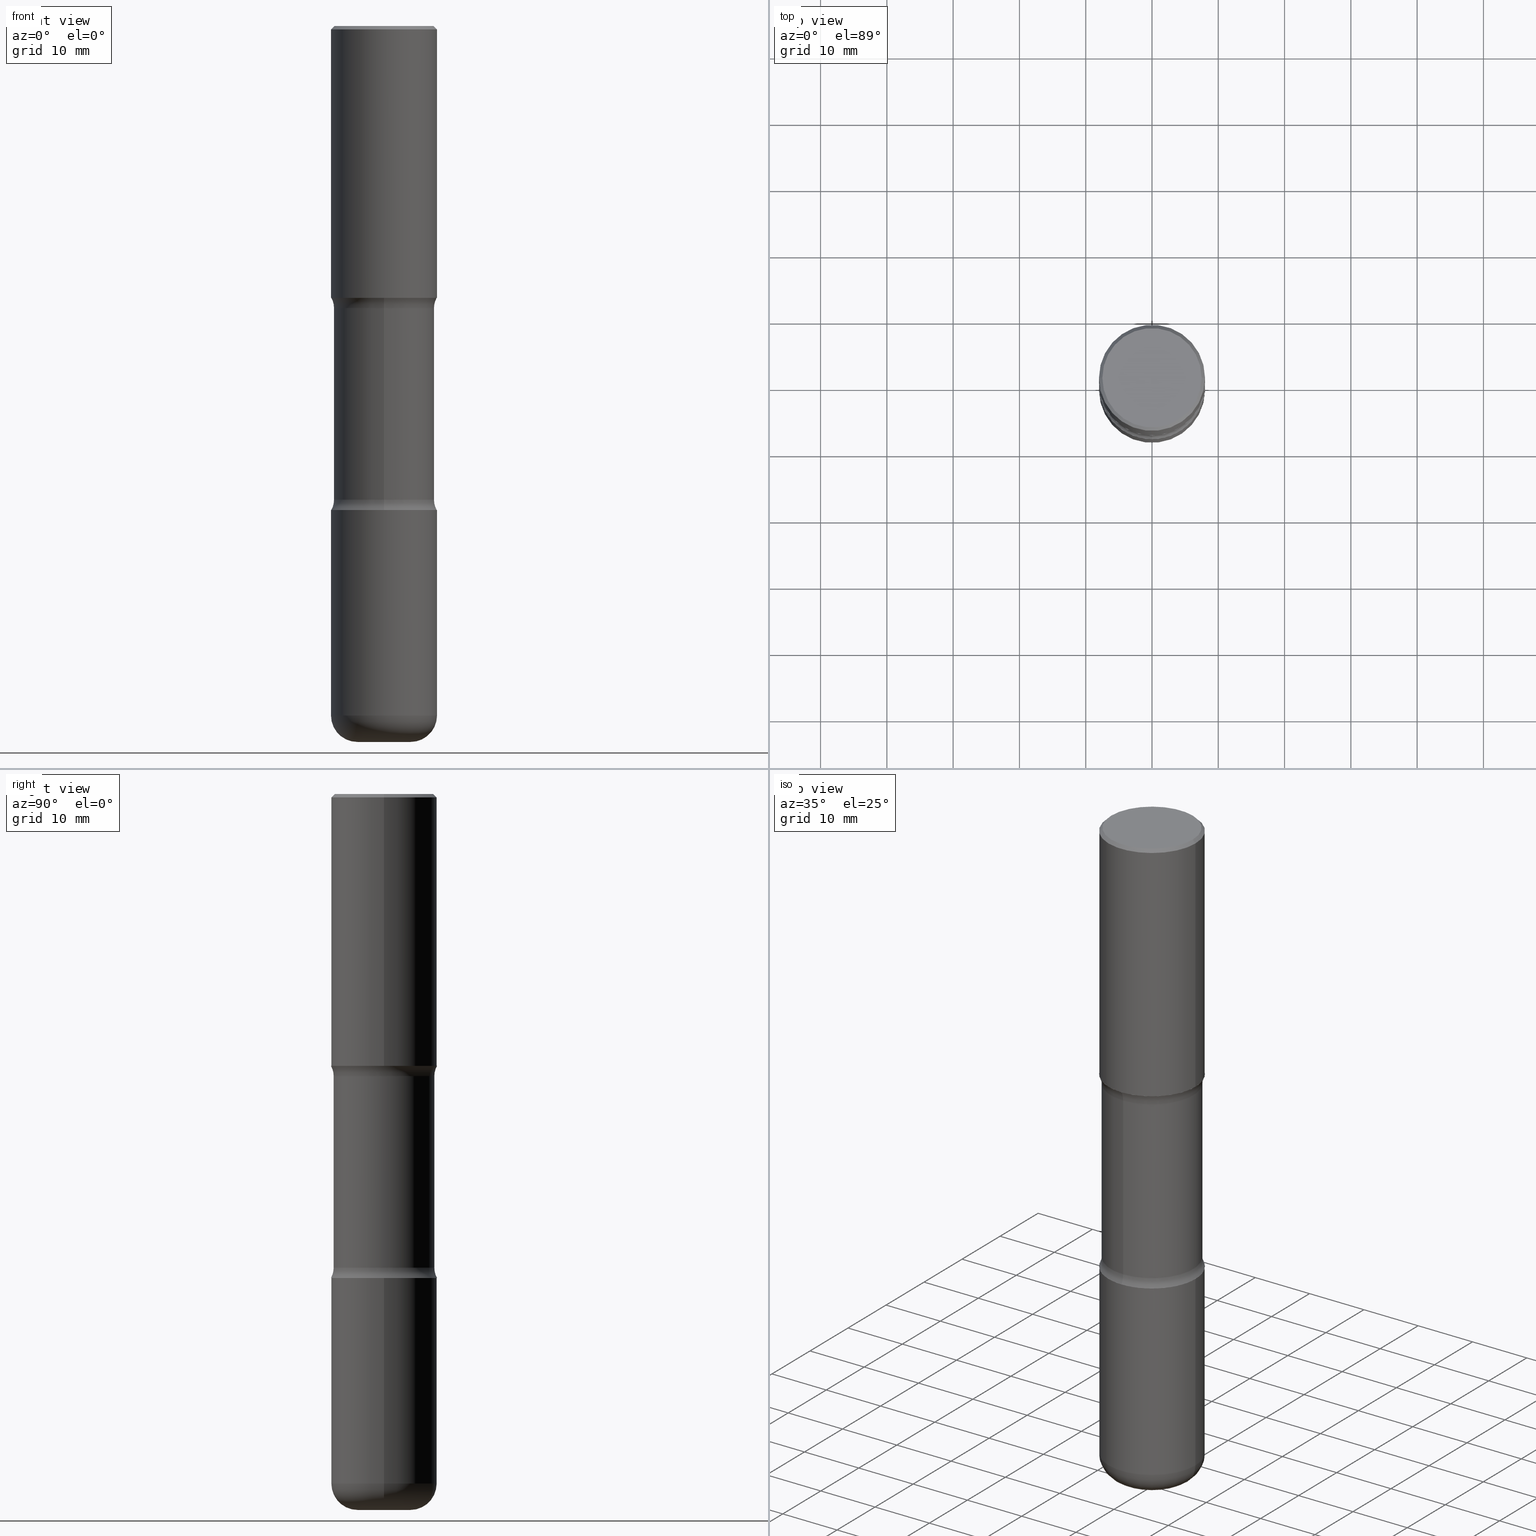
[diagram: canonical four-view strip — front | top / right | iso, engineering-drawing reading convention]
A machine part, canonical four-view strip (front | top / right | iso — engineering-drawing reading convention). The complete STEP part file that produces these views, byte-faithful:
ISO-10303-21;
HEADER;
FILE_DESCRIPTION (( 'STEP AP203' ),
    '1' );
FILE_NAME ('44987.STEP',
    '2024-03-02T04:22:51',
    ( '' ),
    ( '' ),
    'SwSTEP 2.0',
    'SolidWorks 2023',
    '' );
FILE_SCHEMA (( 'CONFIG_CONTROL_DESIGN' ));
ENDSEC;

DATA;
#1 = DIRECTION ( 'NONE',  ( -6.982962677686265922E-15, -1.000000000000000000, 3.441919510220789364E-15 ) ) ;
#2 = VERTEX_POINT ( 'NONE', #511 ) ;
#3 = EDGE_CURVE ( 'NONE', #374, #387, #512, .T. ) ;
#4 = CC_DESIGN_PERSON_AND_ORGANIZATION_ASSIGNMENT ( #79, #382, ( #286 ) ) ;
#5 = CIRCLE ( 'NONE', #237, 0.1579500000000003956 ) ;
#6 = ORIENTED_EDGE ( 'NONE', *, *, #210, .T. ) ;
#7 = CARTESIAN_POINT ( 'NONE',  ( -0.3149500000000000077, 2.129454468560426573E-15, -0.02000000000000006981 ) ) ;
#8 = ORIENTED_EDGE ( 'NONE', *, *, #85, .T. ) ;
#9 = DIRECTION ( 'NONE',  ( -1.000000000000000000, 6.982962677686265922E-15, -4.883557194083112340E-29 ) ) ;
#10 = DESIGN_CONTEXT ( 'detailed design', #113, 'design' ) ;
#11 = PERSON ( 'UNSPECIFIED', 'UNSPECIFIED', 'UNSPECIFIED', ('UNSPECIFIED'), ('UNSPECIFIED'), ('UNSPECIFIED') ) ;
#12 = MECHANICAL_CONTEXT ( 'NONE', #456, 'mechanical' ) ;
#13 = CIRCLE ( 'NONE', #350, 0.2990000000000000435 ) ;
#14 = CARTESIAN_POINT ( 'NONE',  ( -0.3149500000000001743, -6.150350556922980531E-16, -1.614200000000000745 ) ) ;
#15 = AXIS2_PLACEMENT_3D ( 'NONE', #82, #517, #320 ) ;
#16 = ORIENTED_EDGE ( 'NONE', *, *, #435, .T. ) ;
#17 = ORIENTED_EDGE ( 'NONE', *, *, #185, .F. ) ;
#18 = CC_DESIGN_PERSON_AND_ORGANIZATION_ASSIGNMENT ( #155, #283, ( #429 ) ) ;
#19 = EDGE_LOOP ( 'NONE', ( #395, #101, #223, #477 ) ) ;
#20 = VERTEX_POINT ( 'NONE', #487 ) ;
#21 = EDGE_CURVE ( 'NONE', #20, #174, #182, .T. ) ;
#22 = DIRECTION ( 'NONE',  ( 2.438088387897960049E-29, -3.491481338843145188E-15, -1.000000000000000000 ) ) ;
#23 = AXIS2_PLACEMENT_3D ( 'NONE', #131, #434, #226 ) ;
#24 = AXIS2_PLACEMENT_3D ( 'NONE', #92, #141, #363 ) ;
#25 = AXIS2_PLACEMENT_3D ( 'NONE', #480, #398, #313 ) ;
#26 = EDGE_LOOP ( 'NONE', ( #49, #472, #439, #63 ) ) ;
#27 = FACE_OUTER_BOUND ( 'NONE', #357, .T. ) ;
#28 = DIRECTION ( 'NONE',  ( 6.982962677686266711E-15, 1.000000000000000000, -3.654646145370251312E-15 ) ) ;
#29 = ORIENTED_EDGE ( 'NONE', *, *, #551, .F. ) ;
#30 = CALENDAR_DATE ( 2024, 1, 3 ) ;
#31 = ORIENTED_EDGE ( 'NONE', *, *, #404, .F. ) ;
#32 = CARTESIAN_POINT ( 'NONE',  ( 4.890937612370289799E-31, -6.982962677686315028E-17, -0.02000000000000006981 ) ) ;
#33 = AXIS2_PLACEMENT_3D ( 'NONE', #186, #181, #48 ) ;
#34 = LOCAL_TIME ( 23, 22, 51.00000000000000000, #362 ) ;
#35 = DIRECTION ( 'NONE',  ( 2.480077646135916176E-29, -3.441919510220789364E-15, -1.000000000000000000 ) ) ;
#36 = ORIENTED_EDGE ( 'NONE', *, *, #185, .T. ) ;
#37 = DATE_AND_TIME ( #423, #58 ) ;
#38 = AXIS2_PLACEMENT_3D ( 'NONE', #356, #222, #314 ) ;
#39 = CC_DESIGN_APPROVAL ( #478, ( #286 ) ) ;
#40 = ORIENTED_EDGE ( 'NONE', *, *, #460, .T. ) ;
#41 = DIRECTION ( 'NONE',  ( 6.982962677686266711E-15, 1.000000000000000000, -3.654646145370252101E-15 ) ) ;
#42 = SHAPE_DEFINITION_REPRESENTATION ( #66, #252 ) ;
#43 = CYLINDRICAL_SURFACE ( 'NONE', #24, 0.2989999999999999880 ) ;
#44 = EDGE_CURVE ( 'NONE', #231, #180, #550, .T. ) ;
#45 = ORIENTED_EDGE ( 'NONE', *, *, #347, .T. ) ;
#46 = EDGE_CURVE ( 'NONE', #374, #541, #409, .T. ) ;
#47 = CARTESIAN_POINT ( 'NONE',  ( 0.000000000000000000, 0.000000000000000000, 0.000000000000000000 ) ) ;
#48 = DIRECTION ( 'NONE',  ( 1.000000000000000000, -6.982962677686268288E-15, 4.883557194083114022E-29 ) ) ;
#49 = ORIENTED_EDGE ( 'NONE', *, *, #355, .F. ) ;
#50 = CIRCLE ( 'NONE', #188, 0.3149500000000002298 ) ;
#51 = DIMENSIONAL_EXPONENTS ( 1.000000000000000000, 0.000000000000000000, 0.000000000000000000, 0.000000000000000000, 0.000000000000000000, 0.000000000000000000, 0.000000000000000000 ) ;
#52 = EDGE_LOOP ( 'NONE', ( #157, #29 ) ) ;
#53 = EDGE_LOOP ( 'NONE', ( #327, #532, #536, #248 ) ) ;
#54 = DIRECTION ( 'NONE',  ( 1.000000000000000000, -6.982962677686268288E-15, 0.000000000000000000 ) ) ;
#55 = EDGE_CURVE ( 'NONE', #318, #377, #481, .T. ) ;
#56 = ORIENTED_EDGE ( 'NONE', *, *, #228, .T. ) ;
#57 = DIRECTION ( 'NONE',  ( -2.445468806185136877E-29, 3.491481338843145188E-15, 1.000000000000000000 ) ) ;
#58 = LOCAL_TIME ( 23, 22, 51.00000000000000000, #265 ) ;
#59 = ORIENTED_EDGE ( 'NONE', *, *, #203, .F. ) ;
#60 = ADVANCED_FACE ( 'NONE', ( #272 ), #151, .F. ) ;
#61 = CALENDAR_DATE ( 2024, 1, 3 ) ;
#62 = DIRECTION ( 'NONE',  ( 2.480077646135916176E-29, -3.441919510220789364E-15, -1.000000000000000000 ) ) ;
#63 = ORIENTED_EDGE ( 'NONE', *, *, #122, .T. ) ;
#64 = ADVANCED_FACE ( 'NONE', ( #160 ), #170, .F. ) ;
#65 = DIRECTION ( 'NONE',  ( 1.000000000000000000, -6.982962677686267499E-15, 4.876053491004735468E-29 ) ) ;
#66 = PRODUCT_DEFINITION_SHAPE ( 'NONE', 'NONE',  #429 ) ;
#67 = EDGE_LOOP ( 'NONE', ( #74, #431, #40, #6 ) ) ;
#68 = CARTESIAN_POINT ( 'NONE',  ( 2.087905840628298129E-15, 0.2989999999999852220, -4.252000000000001556 ) ) ;
#69 = DIRECTION ( 'NONE',  ( 1.000000000000000000, -6.982962677686265922E-15, 4.876176775795935793E-29 ) ) ;
#70 = CLOSED_SHELL ( 'NONE', ( #443, #106, #317, #60, #164, #507, #235, #338 ) ) ;
#71 = TOROIDAL_SURFACE ( 'NONE', #229, 0.4240000000000000990, 0.1249999999999999445 ) ;
#72 = DIRECTION ( 'NONE',  ( 6.982962677686265922E-15, 1.000000000000000000, -3.441919510220789364E-15 ) ) ;
#73 = FACE_OUTER_BOUND ( 'NONE', #397, .T. ) ;
#74 = ORIENTED_EDGE ( 'NONE', *, *, #264, .F. ) ;
#75 = CARTESIAN_POINT ( 'NONE',  ( 2.087905840628262630E-15, 0.2989999999999902180, -2.812900920628869095 ) ) ;
#76 = CLOSED_SHELL ( 'NONE', ( #380, #167, #509, #336, #292, #177 ) ) ;
#77 = TOROIDAL_SURFACE ( 'NONE', #217, 0.4239999999999999880, 0.1250000000000000555 ) ;
#78 = DIRECTION ( 'NONE',  ( -2.445468806185136877E-29, 3.491481338843145188E-15, 1.000000000000000000 ) ) ;
#79 = PERSON_AND_ORGANIZATION ( #11, #84 ) ;
#80 = CYLINDRICAL_SURFACE ( 'NONE', #124, 0.3149500000000002853 ) ;
#81 = PERSON_AND_ORGANIZATION ( #11, #84 ) ;
#82 = CARTESIAN_POINT ( 'NONE',  ( 4.890937612370289799E-31, -6.982962677686315028E-17, -0.02000000000000006981 ) ) ;
#83 = CIRCLE ( 'NONE', #483, 0.3149500000000003408 ) ;
#84 = ORGANIZATION ( 'UNSPECIFIED', 'UNSPECIFIED', '' ) ;
#85 = EDGE_CURVE ( 'NONE', #318, #387, #148, .T. ) ;
#86 = ORIENTED_EDGE ( 'NONE', *, *, #311, .T. ) ;
#87 = DIRECTION ( 'NONE',  ( -1.000000000000000000, 6.982962677686265922E-15, -4.876176775795935793E-29 ) ) ;
#88 = MANIFOLD_SOLID_BREP ( 'Body-Move/Copy2[1]', #76 ) ;
#89 = EDGE_LOOP ( 'NONE', ( #546, #401, #450, #221 ) ) ;
#90 = APPROVAL ( #115, 'UNSPECIFIED' ) ;
#91 = CYLINDRICAL_SURFACE ( 'NONE', #470, 0.2989999999999999880 ) ;
#92 = CARTESIAN_POINT ( 'NONE',  ( 1.044582434535137653E-28, -1.477748245291944959E-14, -4.252000000000000668 ) ) ;
#93 = ORIENTED_EDGE ( 'NONE', *, *, #347, .F. ) ;
#94 = DIRECTION ( 'NONE',  ( 2.480077646135916176E-29, -3.441919510220789364E-15, -1.000000000000000000 ) ) ;
#95 = CALENDAR_DATE ( 2024, 1, 3 ) ;
#96 = FACE_OUTER_BOUND ( 'NONE', #321, .T. ) ;
#97 = VECTOR ( 'NONE', #57, 39.37007874015748143 ) ;
#98 = CARTESIAN_POINT ( 'NONE',  ( 3.947475746944049633E-29, -5.635949177160607736E-15, -1.614200000000000745 ) ) ;
#99 = DIRECTION ( 'NONE',  ( 1.000000000000000000, -6.860497997771530774E-15, 4.841405836971965838E-29 ) ) ;
#100 = DIRECTION ( 'NONE',  ( -2.445468806185136597E-29, 3.491481338843145583E-15, 1.000000000000000000 ) ) ;
#101 = ORIENTED_EDGE ( 'NONE', *, *, #533, .T. ) ;
#102 =( NAMED_UNIT ( * ) SI_UNIT ( $, .STERADIAN. ) SOLID_ANGLE_UNIT ( ) );
#103 = ORIENTED_EDGE ( 'NONE', *, *, #311, .F. ) ;
#104 = DIRECTION ( 'NONE',  ( -2.445468806185136597E-29, 3.491481338843145583E-15, 1.000000000000000000 ) ) ;
#105 = CLOSED_SHELL ( 'NONE', ( #489, #465, #246, #420, #64, #305 ) ) ;
#106 = ADVANCED_FACE ( 'NONE', ( #240 ), #209, .F. ) ;
#107 = AXIS2_PLACEMENT_3D ( 'NONE', #354, #99, #389 ) ;
#108 = PLANE ( 'NONE',  #251 ) ;
#109 = ORIENTED_EDGE ( 'NONE', *, *, #3, .F. ) ;
#110 = LINE ( 'NONE', #335, #97 ) ;
#111 = DIRECTION ( 'NONE',  ( 1.000000000000000000, -6.982962677686268288E-15, 4.883557194083114022E-29 ) ) ;
#112 = ORIENTED_EDGE ( 'NONE', *, *, #371, .T. ) ;
#113 = APPLICATION_CONTEXT ( 'configuration controlled 3d designs of mechanical parts and assemblies' ) ;
#114 = COORDINATED_UNIVERSAL_TIME_OFFSET ( 5, 0, .BEHIND. ) ;
#115 = APPROVAL_STATUS ( 'not_yet_approved' ) ;
#116 = FACE_OUTER_BOUND ( 'NONE', #133, .T. ) ;
#117 = VECTOR ( 'NONE', #508, 39.37007874015748143 ) ;
#118 = ORIENTED_EDGE ( 'NONE', *, *, #192, .T. ) ;
#119 = LINE ( 'NONE', #168, #117 ) ;
#120 = DIRECTION ( 'NONE',  ( 1.000000000000000000, -6.982962677686269866E-15, 0.000000000000000000 ) ) ;
#121 = DIRECTION ( 'NONE',  ( 6.982962677686264344E-15, 1.000000000000000000, -3.469564049740290403E-15 ) ) ;
#122 = EDGE_CURVE ( 'NONE', #236, #2, #542, .T. ) ;
#123 = CC_DESIGN_DATE_AND_TIME_ASSIGNMENT ( #213, #351, ( #286 ) ) ;
#124 = AXIS2_PLACEMENT_3D ( 'NONE', #414, #557, #348 ) ;
#125 = FACE_OUTER_BOUND ( 'NONE', #342, .T. ) ;
#126 = ORIENTED_EDGE ( 'NONE', *, *, #268, .T. ) ;
#127 = EDGE_CURVE ( 'NONE', #377, #236, #402, .T. ) ;
#128 = AXIS2_PLACEMENT_3D ( 'NONE', #359, #518, #28 ) ;
#129 = PERSON_AND_ORGANIZATION_ROLE ( 'design_supplier' ) ;
#130 = ORIENTED_EDGE ( 'NONE', *, *, #203, .T. ) ;
#131 = CARTESIAN_POINT ( 'NONE',  ( 7.028277348976083234E-29, -1.003451736783520325E-14, -2.874000000000000554 ) ) ;
#132 = FACE_OUTER_BOUND ( 'NONE', #330, .T. ) ;
#133 = EDGE_LOOP ( 'NONE', ( #109, #103, #16, #45 ) ) ;
#134 = DIRECTION ( 'NONE',  ( 1.000000000000000000, -6.982962677686269866E-15, 0.000000000000000000 ) ) ;
#135 = ORIENTED_EDGE ( 'NONE', *, *, #476, .F. ) ;
#136 = ORIENTED_EDGE ( 'NONE', *, *, #44, .T. ) ;
#137 = VECTOR ( 'NONE', #165, 39.37007874015748143 ) ;
#138 = DIRECTION ( 'NONE',  ( 1.000000000000000000, 0.000000000000000000, 0.000000000000000000 ) ) ;
#139 = CONICAL_SURFACE ( 'NONE', #15, 0.3149500000000000077, 0.7853981633974477239 ) ;
#140 = DIRECTION ( 'NONE',  ( 2.480077646135915895E-29, -3.441919510220789364E-15, -1.000000000000000000 ) ) ;
#141 = DIRECTION ( 'NONE',  ( 2.480077646135916176E-29, -3.441919510220789364E-15, -1.000000000000000000 ) ) ;
#142 = ORIENTED_EDGE ( 'NONE', *, *, #46, .F. ) ;
#143 = CARTESIAN_POINT ( 'NONE',  ( 4.890937612370289799E-31, -6.982962677686315028E-17, -0.02000000000000006981 ) ) ;
#144 = DIRECTION ( 'NONE',  ( 2.438088387897960049E-29, -3.491481338843145188E-15, -1.000000000000000000 ) ) ;
#145 = ORIENTED_EDGE ( 'NONE', *, *, #210, .F. ) ;
#146 = EDGE_CURVE ( 'NONE', #20, #538, #537, .T. ) ;
#147 = PERSON_AND_ORGANIZATION ( #11, #84 ) ;
#148 = LINE ( 'NONE', #156, #392 ) ;
#149 = VERTEX_POINT ( 'NONE', #14 ) ;
#150 = VERTEX_POINT ( 'NONE', #407 ) ;
#151 = TOROIDAL_SURFACE ( 'NONE', #227, 0.4239999999999999880, 0.1250000000000000555 ) ;
#152 = AXIS2_PLACEMENT_3D ( 'NONE', #290, #144, #441 ) ;
#153 = CARTESIAN_POINT ( 'NONE',  ( 1.001419476132813495E-28, -1.429761608256268379E-14, -4.095000000000000639 ) ) ;
#154 = AXIS2_PLACEMENT_3D ( 'NONE', #280, #544, #138 ) ;
#155 = PERSON_AND_ORGANIZATION ( #11, #84 ) ;
#156 = CARTESIAN_POINT ( 'NONE',  ( -2.051288901333583214E-15, -0.2990000000000148095, -4.251999999999999780 ) ) ;
#157 = ORIENTED_EDGE ( 'NONE', *, *, #192, .F. ) ;
#158 = UNCERTAINTY_MEASURE_WITH_UNIT (LENGTH_MEASURE( 1.000000000000000082E-05 ), #239, 'distance_accuracy_value', 'NONE');
#159 = CARTESIAN_POINT ( 'NONE',  ( -3.131554243005659264E-46, 4.471029511141341874E-32, 1.280553747030123384E-17 ) ) ;
#160 = FACE_OUTER_BOUND ( 'NONE', #52, .T. ) ;
#161 = CONICAL_SURFACE ( 'NONE', #267, 0.3149500000000000077, 0.7853981633974477239 ) ;
#162 = DATE_AND_TIME ( #30, #543 ) ;
#163 = AXIS2_PLACEMENT_3D ( 'NONE', #496, #249, #65 ) ;
#164 = ADVANCED_FACE ( 'NONE', ( #373 ), #108, .F. ) ;
#165 = DIRECTION ( 'NONE',  ( -2.445468806185136877E-29, 3.491481338843145188E-15, 1.000000000000000000 ) ) ;
#166 = CARTESIAN_POINT ( 'NONE',  ( -2.160713844398073943E-15, -0.3149500000000101663, -2.873999999999999666 ) ) ;
#167 = ADVANCED_FACE ( 'NONE', ( #187 ), #426, .T. ) ;
#168 = CARTESIAN_POINT ( 'NONE',  ( 0.3149500000000000077, -2.230543471175007450E-15, -0.02000000000000006981 ) ) ;
#169 = DIRECTION ( 'NONE',  ( -2.445468806185136597E-29, 3.491481338843145583E-15, 1.000000000000000000 ) ) ;
#170 = PLANE ( 'NONE',  #410 ) ;
#171 = CARTESIAN_POINT ( 'NONE',  ( 4.055405991321890096E-29, -5.908685282203086004E-15, -1.675299079371134425 ) ) ;
#172 = CARTESIAN_POINT ( 'NONE',  ( 2.059624841783564063E-15, 0.2949499999999999345, -1.023409652156634942E-15 ) ) ;
#173 = CALENDAR_DATE ( 2024, 1, 3 ) ;
#174 = VERTEX_POINT ( 'NONE', #408 ) ;
#175 = CIRCLE ( 'NONE', #339, 0.1569999999999997231 ) ;
#176 = APPROVAL_PERSON_ORGANIZATION ( #337, #90, #295 ) ;
#177 = ADVANCED_FACE ( 'NONE', ( #325 ), #539, .F. ) ;
#178 = ORIENTED_EDGE ( 'NONE', *, *, #122, .F. ) ;
#179 = FACE_OUTER_BOUND ( 'NONE', #399, .T. ) ;
#180 = VERTEX_POINT ( 'NONE', #370 ) ;
#181 = DIRECTION ( 'NONE',  ( -2.445468806185136597E-29, 3.491481338843145583E-15, 1.000000000000000000 ) ) ;
#182 = CIRCLE ( 'NONE', #494, 0.3149500000000003408 ) ;
#183 = AXIS2_PLACEMENT_3D ( 'NONE', #172, #349, #87 ) ;
#184 = DIRECTION ( 'NONE',  ( 2.480077646135916176E-29, -3.441919510220789364E-15, -1.000000000000000000 ) ) ;
#185 = EDGE_CURVE ( 'NONE', #390, #538, #50, .T. ) ;
#186 = CARTESIAN_POINT ( 'NONE',  ( 1.001419476132813495E-28, -1.429761608256268379E-14, -4.095000000000000639 ) ) ;
#187 = FACE_OUTER_BOUND ( 'NONE', #288, .T. ) ;
#188 = AXIS2_PLACEMENT_3D ( 'NONE', #202, #486, #190 ) ;
#189 = APPLICATION_PROTOCOL_DEFINITION ( 'international standard', 'config_control_design', 1994, #113 ) ;
#190 = DIRECTION ( 'NONE',  ( 1.000000000000000000, -6.982962677686264344E-15, 0.000000000000000000 ) ) ;
#191 = DATE_AND_TIME ( #95, #34 ) ;
#192 = EDGE_CURVE ( 'NONE', #150, #149, #462, .T. ) ;
#193 = CC_DESIGN_PERSON_AND_ORGANIZATION_ASSIGNMENT ( #147, #276, ( #448 ) ) ;
#194 =( NAMED_UNIT ( * ) PLANE_ANGLE_UNIT ( ) SI_UNIT ( $, .RADIAN. ) );
#195 = CARTESIAN_POINT ( 'NONE',  ( 6.878861456287348184E-29, -9.821191072390396407E-15, -2.812900920628867762 ) ) ;
#196 = EDGE_LOOP ( 'NONE', ( #31, #136, #284, #521 ) ) ;
#197 = DIRECTION ( 'NONE',  ( 6.982962677686264344E-15, 1.000000000000000000, -3.469564049740290403E-15 ) ) ;
#198 = DATE_TIME_ROLE ( 'creation_date' ) ;
#199 = ORIENTED_EDGE ( 'NONE', *, *, #21, .F. ) ;
#200 =( LENGTH_UNIT ( ) NAMED_UNIT ( * ) SI_UNIT ( $, .METRE. ) );
#201 = AXIS2_PLACEMENT_3D ( 'NONE', #153, #497, #111 ) ;
#202 = CARTESIAN_POINT ( 'NONE',  ( 7.028277348976083234E-29, -1.003451736783520325E-14, -2.874000000000000554 ) ) ;
#203 = EDGE_CURVE ( 'NONE', #180, #231, #5, .T. ) ;
#204 = DIRECTION ( 'NONE',  ( 2.480077646135916176E-29, -3.441919510220789364E-15, -1.000000000000000000 ) ) ;
#205 = CARTESIAN_POINT ( 'NONE',  ( 0.3149500000000000632, -2.199284095337290265E-15, 1.535751875536930410E-29 ) ) ;
#206 = ORIENTED_EDGE ( 'NONE', *, *, #533, .F. ) ;
#207 = CARTESIAN_POINT ( 'NONE',  ( 0.000000000000000000, 0.000000000000000000, 0.000000000000000000 ) ) ;
#208 = CARTESIAN_POINT ( 'NONE',  ( 0.000000000000000000, 0.000000000000000000, 0.000000000000000000 ) ) ;
#209 = TOROIDAL_SURFACE ( 'NONE', #529, 0.4240000000000000990, 0.1249999999999999445 ) ;
#210 = EDGE_CURVE ( 'NONE', #498, #405, #469, .T. ) ;
#211 = CARTESIAN_POINT ( 'NONE',  ( 7.028277348976083234E-29, -1.003451736783520325E-14, -2.874000000000000554 ) ) ;
#212 = DIRECTION ( 'NONE',  ( -1.000000000000000000, 7.105427357601001859E-15, 0.000000000000000000 ) ) ;
#213 = DATE_AND_TIME ( #173, #316 ) ;
#214 = PLANE ( 'NONE',  #183 ) ;
#215 = PERSON_AND_ORGANIZATION ( #11, #84 ) ;
#216 = EDGE_CURVE ( 'NONE', #538, #390, #504, .T. ) ;
#217 = AXIS2_PLACEMENT_3D ( 'NONE', #473, #425, #525 ) ;
#218 = EDGE_LOOP ( 'NONE', ( #142, #468, #112, #412 ) ) ;
#219 = AXIS2_PLACEMENT_3D ( 'NONE', #207, #463, #554 ) ;
#220 = AXIS2_PLACEMENT_3D ( 'NONE', #47, #224, #466 ) ;
#221 = ORIENTED_EDGE ( 'NONE', *, *, #460, .F. ) ;
#222 = DIRECTION ( 'NONE',  ( -1.000000000000000000, 6.982962677686265922E-15, -4.883557194083112340E-29 ) ) ;
#223 = ORIENTED_EDGE ( 'NONE', *, *, #216, .F. ) ;
#224 = DIRECTION ( 'NONE',  ( -2.445468806185136597E-29, 3.491481338843145583E-15, 1.000000000000000000 ) ) ;
#225 = ORIENTED_EDGE ( 'NONE', *, *, #46, .T. ) ;
#226 = DIRECTION ( 'NONE',  ( 6.982962677686264344E-15, 1.000000000000000000, -3.469564049740290403E-15 ) ) ;
#227 = AXIS2_PLACEMENT_3D ( 'NONE', #232, #396, #501 ) ;
#228 = EDGE_CURVE ( 'NONE', #319, #241, #334, .T. ) ;
#229 = AXIS2_PLACEMENT_3D ( 'NONE', #455, #204, #72 ) ;
#230 = PRODUCT_DEFINITION_FORMATION_WITH_SPECIFIED_SOURCE ( 'ANY', '', #448, .NOT_KNOWN. ) ;
#231 = VERTEX_POINT ( 'NONE', #556 ) ;
#232 = CARTESIAN_POINT ( 'NONE',  ( 4.049200658180612693E-29, -5.917571672447023777E-15, -1.675299079371134425 ) ) ;
#233 = FACE_OUTER_BOUND ( 'NONE', #89, .T. ) ;
#234 = DIRECTION ( 'NONE',  ( 1.000000000000000000, -6.982962677686266711E-15, 0.000000000000000000 ) ) ;
#235 = ADVANCED_FACE ( 'NONE', ( #116 ), #71, .F. ) ;
#236 = VERTEX_POINT ( 'NONE', #253 ) ;
#237 = AXIS2_PLACEMENT_3D ( 'NONE', #490, #281, #120 ) ;
#238 = APPROVAL_PERSON_ORGANIZATION ( #331, #328, #492 ) ;
#239 =( CONVERSION_BASED_UNIT ( 'INCH', #499 ) LENGTH_UNIT ( ) NAMED_UNIT ( #51 ) );
#240 = FACE_OUTER_BOUND ( 'NONE', #218, .T. ) ;
#241 = VERTEX_POINT ( 'NONE', #258 ) ;
#242 = DATE_AND_TIME ( #61, #411 ) ;
#243 = CARTESIAN_POINT ( 'NONE',  ( 0.3149500000000002853, -2.199284095337291843E-15, 1.535751875536931531E-29 ) ) ;
#244 = ORIENTED_EDGE ( 'NONE', *, *, #551, .T. ) ;
#245 = CARTESIAN_POINT ( 'NONE',  ( 3.947475746944049633E-29, -5.635949177160607736E-15, -1.614200000000000745 ) ) ;
#246 = ADVANCED_FACE ( 'NONE', ( #312 ), #161, .T. ) ;
#247 = CARTESIAN_POINT ( 'NONE',  ( 2.960776175339016781E-15, 0.4239999999999940483, -1.675299079371135758 ) ) ;
#248 = ORIENTED_EDGE ( 'NONE', *, *, #127, .F. ) ;
#249 = DIRECTION ( 'NONE',  ( -2.445468806185136597E-29, 3.491481338843145583E-15, 1.000000000000000000 ) ) ;
#250 = AXIS2_PLACEMENT_3D ( 'NONE', #394, #94, #479 ) ;
#251 = AXIS2_PLACEMENT_3D ( 'NONE', #528, #140, #287 ) ;
#252 = ADVANCED_BREP_SHAPE_REPRESENTATION ( '44987', ( #88, #461, #458, #154 ), #417 ) ;
#253 = CARTESIAN_POINT ( 'NONE',  ( 2.199284095337330103E-15, 0.3149499999999946231, -1.614200000000001634 ) ) ;
#254 = DIRECTION ( 'NONE',  ( -2.445468806185136597E-29, 3.491481338843145583E-15, 1.000000000000000000 ) ) ;
#255 = FACE_OUTER_BOUND ( 'NONE', #19, .T. ) ;
#256 = EDGE_CURVE ( 'NONE', #149, #498, #418, .T. ) ;
#257 = CC_DESIGN_PERSON_AND_ORGANIZATION_ASSIGNMENT ( #464, #129, ( #230 ) ) ;
#258 = CARTESIAN_POINT ( 'NONE',  ( 0.2949499999999999345, -2.127023677808860075E-15, 1.280553747031587399E-17 ) ) ;
#259 = CYLINDRICAL_SURFACE ( 'NONE', #527, 0.3149500000000002853 ) ;
#260 = VECTOR ( 'NONE', #332, 39.37007874015748143 ) ;
#261 = APPROVAL_DATE_TIME ( #162, #90 ) ;
#262 = CARTESIAN_POINT ( 'NONE',  ( -2.106001372865877291E-15, -0.2990000000000058722, -1.675299079371133315 ) ) ;
#263 = CARTESIAN_POINT ( 'NONE',  ( 0.3149500000000000077, -2.230543471175007450E-15, -0.02000000000000006981 ) ) ;
#264 = EDGE_CURVE ( 'NONE', #241, #405, #119, .T. ) ;
#265 = COORDINATED_UNIVERSAL_TIME_OFFSET ( 5, 0, .BEHIND. ) ;
#266 = CARTESIAN_POINT ( 'NONE',  ( 1.050981742056963112E-28, -5.048753828358404860E-15, -2.874000000000000998 ) ) ;
#267 = AXIS2_PLACEMENT_3D ( 'NONE', #32, #381, #340 ) ;
#268 = EDGE_CURVE ( 'NONE', #377, #318, #445, .T. ) ;
#269 = CARTESIAN_POINT ( 'NONE',  ( 1.044582434535137653E-28, -1.477748245291944959E-14, -4.252000000000000668 ) ) ;
#270 = EDGE_CURVE ( 'NONE', #150, #405, #378, .T. ) ;
#271 = ORIENTED_EDGE ( 'NONE', *, *, #216, .T. ) ;
#272 = FACE_OUTER_BOUND ( 'NONE', #26, .T. ) ;
#273 = TOROIDAL_SURFACE ( 'NONE', #33, 0.1579500000000003679, 0.1569999999999997231 ) ;
#274 = PLANE ( 'NONE',  #530 ) ;
#275 = DIRECTION ( 'NONE',  ( 6.860497997771529985E-15, 1.000000000000000000, 0.000000000000000000 ) ) ;
#276 = PERSON_AND_ORGANIZATION_ROLE ( 'design_owner' ) ;
#277 = DIRECTION ( 'NONE',  ( 2.480077646135916176E-29, -3.441919510220789364E-15, -1.000000000000000000 ) ) ;
#278 = DIRECTION ( 'NONE',  ( -2.445468806185136597E-29, 3.491481338843145583E-15, 1.000000000000000000 ) ) ;
#279 = VERTEX_POINT ( 'NONE', #75 ) ;
#280 = CARTESIAN_POINT ( 'NONE',  ( 0.000000000000000000, 0.000000000000000000, 0.000000000000000000 ) ) ;
#281 = DIRECTION ( 'NONE',  ( -2.445468806185136597E-29, 3.491481338843145583E-15, 1.000000000000000000 ) ) ;
#282 = CC_DESIGN_DATE_AND_TIME_ASSIGNMENT ( #191, #198, ( #429 ) ) ;
#283 = PERSON_AND_ORGANIZATION_ROLE ( 'creator' ) ;
#284 = ORIENTED_EDGE ( 'NONE', *, *, #476, .T. ) ;
#285 = AXIS2_PLACEMENT_3D ( 'NONE', #547, #379, #510 ) ;
#286 = SECURITY_CLASSIFICATION ( '', '', #385 ) ;
#287 = DIRECTION ( 'NONE',  ( 6.982962677686265922E-15, 1.000000000000000000, -3.441919510220789364E-15 ) ) ;
#288 = EDGE_LOOP ( 'NONE', ( #130, #393, #199, #135 ) ) ;
#289 = LINE ( 'NONE', #68, #514 ) ;
#290 = CARTESIAN_POINT ( 'NONE',  ( 1.050981742056963112E-28, -5.048753828358404860E-15, -2.874000000000000998 ) ) ;
#291 = ORIENTED_EDGE ( 'NONE', *, *, #531, .T. ) ;
#292 = ADVANCED_FACE ( 'NONE', ( #27 ), #80, .T. ) ;
#293 = DIRECTION ( 'NONE',  ( -1.000000000000000000, 6.982962677686265922E-15, -4.876176775795935793E-29 ) ) ;
#294 = CARTESIAN_POINT ( 'NONE',  ( 3.947475746944049633E-29, -5.635949177160607736E-15, -1.614200000000000745 ) ) ;
#295 = APPROVAL_ROLE ( '' ) ;
#296 = ORIENTED_EDGE ( 'NONE', *, *, #85, .F. ) ;
#297 = CIRCLE ( 'NONE', #107, 0.1250000000000000555 ) ;
#298 = VECTOR ( 'NONE', #432, 39.37007874015748143 ) ;
#299 = CIRCLE ( 'NONE', #454, 0.3149500000000001743 ) ;
#300 = ORIENTED_EDGE ( 'NONE', *, *, #256, .T. ) ;
#301 = COORDINATED_UNIVERSAL_TIME_OFFSET ( 5, 0, .BEHIND. ) ;
#302 = ORIENTED_EDGE ( 'NONE', *, *, #371, .F. ) ;
#303 = EDGE_CURVE ( 'NONE', #2, #236, #384, .T. ) ;
#304 = DIRECTION ( 'NONE',  ( 6.982962677686264344E-15, 1.000000000000000000, -3.469564049740290403E-15 ) ) ;
#305 = ADVANCED_FACE ( 'NONE', ( #73 ), #515, .T. ) ;
#306 = DIRECTION ( 'NONE',  ( 1.000000000000000000, -6.982962677686264344E-15, 0.000000000000000000 ) ) ;
#307 = CARTESIAN_POINT ( 'NONE',  ( -0.3149500000000002298, -9.928212378922505958E-15, -2.874000000000000554 ) ) ;
#308 = FACE_OUTER_BOUND ( 'NONE', #53, .T. ) ;
#309 = AXIS2_PLACEMENT_3D ( 'NONE', #457, #254, #306 ) ;
#310 = CIRCLE ( 'NONE', #446, 0.3149500000000000077 ) ;
#311 = EDGE_CURVE ( 'NONE', #541, #374, #315, .T. ) ;
#312 = FACE_OUTER_BOUND ( 'NONE', #67, .T. ) ;
#313 = DIRECTION ( 'NONE',  ( 1.000000000000000000, -6.982962677686265133E-15, 0.000000000000000000 ) ) ;
#314 = DIRECTION ( 'NONE',  ( -6.982962677686265133E-15, -1.000000000000000000, 0.000000000000000000 ) ) ;
#315 = CIRCLE ( 'NONE', #367, 0.3149500000000002298 ) ;
#316 = LOCAL_TIME ( 23, 22, 51.00000000000000000, #346 ) ;
#317 = ADVANCED_FACE ( 'NONE', ( #308 ), #77, .F. ) ;
#318 = VERTEX_POINT ( 'NONE', #262 ) ;
#319 = VERTEX_POINT ( 'NONE', #422 ) ;
#320 = DIRECTION ( 'NONE',  ( -1.000000000000000000, 6.982962677686266711E-15, 0.000000000000000000 ) ) ;
#321 = EDGE_LOOP ( 'NONE', ( #118, #300, #549, #474 ) ) ;
#322 = AXIS2_PLACEMENT_3D ( 'NONE', #376, #35, #304 ) ;
#323 = CC_DESIGN_APPROVAL ( #90, ( #230 ) ) ;
#324 = CARTESIAN_POINT ( 'NONE',  ( 0.3149500000000002298, -1.223380146317249313E-14, -2.874000000000000554 ) ) ;
#325 = FACE_OUTER_BOUND ( 'NONE', #488, .T. ) ;
#326 = CARTESIAN_POINT ( 'NONE',  ( -2.908851151055060947E-15, -0.4240000000000099245, -2.812900920628865986 ) ) ;
#327 = ORIENTED_EDGE ( 'NONE', *, *, #55, .F. ) ;
#328 = APPROVAL ( #369, 'UNSPECIFIED' ) ;
#329 = DIRECTION ( 'NONE',  ( 1.000000000000000000, -6.982962677686265922E-15, 0.000000000000000000 ) ) ;
#330 = EDGE_LOOP ( 'NONE', ( #126, #8, #93, #430 ) ) ;
#331 = PERSON_AND_ORGANIZATION ( #11, #84 ) ;
#332 = DIRECTION ( 'NONE',  ( -2.445468806185136877E-29, 3.491481338843145188E-15, 1.000000000000000000 ) ) ;
#333 = ORIENTED_EDGE ( 'NONE', *, *, #540, .T. ) ;
#334 = CIRCLE ( 'NONE', #560, 0.2949499999999999345 ) ;
#335 = CARTESIAN_POINT ( 'NONE',  ( -0.3149500000000002853, 2.237854346276437562E-15, -1.549218606675783797E-29 ) ) ;
#336 = ADVANCED_FACE ( 'NONE', ( #383 ), #273, .T. ) ;
#337 = PERSON_AND_ORGANIZATION ( #11, #84 ) ;
#338 = ADVANCED_FACE ( 'NONE', ( #433 ), #43, .T. ) ;
#339 = AXIS2_PLACEMENT_3D ( 'NONE', #558, #419, #212 ) ;
#340 = DIRECTION ( 'NONE',  ( -1.000000000000000000, 6.982962677686266711E-15, 0.000000000000000000 ) ) ;
#341 = DIRECTION ( 'NONE',  ( 1.000000000000000000, -6.982962677686267499E-15, 4.876176775795936353E-29 ) ) ;
#342 = EDGE_LOOP ( 'NONE', ( #86, #225 ) ) ;
#343 = DIRECTION ( 'NONE',  ( 1.000000000000000000, -6.982962677686267499E-15, 4.876053491004735468E-29 ) ) ;
#344 = CARTESIAN_POINT ( 'NONE',  ( -2.106001372865846525E-15, -0.2990000000000098690, -2.812900920628866874 ) ) ;
#345 = DIRECTION ( 'NONE',  ( 2.480077646135916176E-29, -3.441919510220789364E-15, -1.000000000000000000 ) ) ;
#346 = COORDINATED_UNIVERSAL_TIME_OFFSET ( 5, 0, .BEHIND. ) ;
#347 = EDGE_CURVE ( 'NONE', #279, #387, #13, .T. ) ;
#348 = DIRECTION ( 'NONE',  ( 1.000000000000000000, -6.982962677686267499E-15, 4.876176775795936353E-29 ) ) ;
#349 = DIRECTION ( 'NONE',  ( 2.438088387897960049E-29, -3.491481338843145188E-15, -1.000000000000000000 ) ) ;
#350 = AXIS2_PLACEMENT_3D ( 'NONE', #437, #184, #482 ) ;
#351 = DATE_TIME_ROLE ( 'classification_date' ) ;
#352 = CIRCLE ( 'NONE', #25, 0.1569999999999997231 ) ;
#353 = PLANE ( 'NONE',  #368 ) ;
#354 = CARTESIAN_POINT ( 'NONE',  ( -2.908851151055088557E-15, -0.4240000000000059277, -1.675299079371132871 ) ) ;
#355 = EDGE_CURVE ( 'NONE', #318, #2, #297, .T. ) ;
#356 = CARTESIAN_POINT ( 'NONE',  ( 2.960776175339046363E-15, 0.4239999999999902736, -2.812900920628869539 ) ) ;
#357 = EDGE_LOOP ( 'NONE', ( #206, #442, #491, #17 ) ) ;
#358 = APPROVAL_PERSON_ORGANIZATION ( #81, #478, #428 ) ;
#359 = CARTESIAN_POINT ( 'NONE',  ( 6.876746888028252201E-29, -9.824219254491173135E-15, -2.812900920628867762 ) ) ;
#360 = EDGE_LOOP ( 'NONE', ( #56, #291 ) ) ;
#361 = CARTESIAN_POINT ( 'NONE',  ( 1.001419476132813495E-28, -1.429761608256268379E-14, -4.095000000000000639 ) ) ;
#362 = COORDINATED_UNIVERSAL_TIME_OFFSET ( 5, 0, .BEHIND. ) ;
#363 = DIRECTION ( 'NONE',  ( 6.982962677686266711E-15, 1.000000000000000000, -3.654646145370252101E-15 ) ) ;
#364 = EDGE_LOOP ( 'NONE', ( #296, #375, #333, #302 ) ) ;
#365 = DIRECTION ( 'NONE',  ( 1.000000000000000000, -6.860497997771530774E-15, 4.841405836971965838E-29 ) ) ;
#366 = ORIENTED_EDGE ( 'NONE', *, *, #44, .F. ) ;
#367 = AXIS2_PLACEMENT_3D ( 'NONE', #211, #345, #121 ) ;
#368 = AXIS2_PLACEMENT_3D ( 'NONE', #403, #22, #293 ) ;
#369 = APPROVAL_STATUS ( 'not_yet_approved' ) ;
#370 = CARTESIAN_POINT ( 'NONE',  ( 0.1579500000000003956, -1.594873760770160260E-14, -4.251999999999999780 ) ) ;
#371 = EDGE_CURVE ( 'NONE', #387, #279, #416, .T. ) ;
#372 = ORIENTED_EDGE ( 'NONE', *, *, #256, .F. ) ;
#373 = FACE_OUTER_BOUND ( 'NONE', #484, .T. ) ;
#374 = VERTEX_POINT ( 'NONE', #166 ) ;
#375 = ORIENTED_EDGE ( 'NONE', *, *, #55, .T. ) ;
#376 = CARTESIAN_POINT ( 'NONE',  ( 3.903875530374056821E-29, -5.698387168859051151E-15, -1.614200000000000523 ) ) ;
#377 = VERTEX_POINT ( 'NONE', #548 ) ;
#378 = LINE ( 'NONE', #205, #513 ) ;
#379 = DIRECTION ( 'NONE',  ( -2.445468806185136597E-29, 3.491481338843145583E-15, 1.000000000000000000 ) ) ;
#380 = ADVANCED_FACE ( 'NONE', ( #255 ), #259, .T. ) ;
#381 = DIRECTION ( 'NONE',  ( 2.445468806185136597E-29, -3.491481338843145583E-15, -1.000000000000000000 ) ) ;
#382 = PERSON_AND_ORGANIZATION_ROLE ( 'classification_officer' ) ;
#383 = FACE_OUTER_BOUND ( 'NONE', #196, .T. ) ;
#384 = CIRCLE ( 'NONE', #322, 0.3149500000000002298 ) ;
#385 = SECURITY_CLASSIFICATION_LEVEL ( 'unclassified' ) ;
#386 = CIRCLE ( 'NONE', #163, 0.2949499999999999345 ) ;
#387 = VERTEX_POINT ( 'NONE', #344 ) ;
#388 = CARTESIAN_POINT ( 'NONE',  ( -0.3149500000000000077, 2.129454468560426573E-15, -0.02000000000000006981 ) ) ;
#389 = DIRECTION ( 'NONE',  ( 6.860497997771530774E-15, 1.000000000000000000, 0.000000000000000000 ) ) ;
#390 = VERTEX_POINT ( 'NONE', #307 ) ;
#391 = AXIS2_PLACEMENT_3D ( 'NONE', #524, #278, #134 ) ;
#392 = VECTOR ( 'NONE', #449, 39.37007874015748143 ) ;
#393 = ORIENTED_EDGE ( 'NONE', *, *, #404, .T. ) ;
#394 = CARTESIAN_POINT ( 'NONE',  ( 4.055405991321890096E-29, -5.908685282203086004E-15, -1.675299079371134425 ) ) ;
#395 = ORIENTED_EDGE ( 'NONE', *, *, #21, .T. ) ;
#396 = DIRECTION ( 'NONE',  ( 2.480077646135916176E-29, -3.441919510220789364E-15, -1.000000000000000000 ) ) ;
#397 = EDGE_LOOP ( 'NONE', ( #372, #244, #503, #145 ) ) ;
#398 = DIRECTION ( 'NONE',  ( -6.982962677686266711E-15, -1.000000000000000000, 3.491481338843145583E-15 ) ) ;
#399 = EDGE_LOOP ( 'NONE', ( #59, #366 ) ) ;
#400 = DIRECTION ( 'NONE',  ( -2.445468806185136597E-29, 3.491481338843145583E-15, 1.000000000000000000 ) ) ;
#401 = ORIENTED_EDGE ( 'NONE', *, *, #264, .T. ) ;
#402 = CIRCLE ( 'NONE', #519, 0.1250000000000000555 ) ;
#403 = CARTESIAN_POINT ( 'NONE',  ( 2.066882931247249977E-28, -1.375574826940424726E-16, -4.252000000000000668 ) ) ;
#404 = EDGE_CURVE ( 'NONE', #231, #174, #175, .T. ) ;
#405 = VERTEX_POINT ( 'NONE', #263 ) ;
#406 = APPROVAL_DATE_TIME ( #242, #328 ) ;
#407 = CARTESIAN_POINT ( 'NONE',  ( 0.3149500000000001743, -7.835233272497899184E-15, -1.614200000000000745 ) ) ;
#408 = CARTESIAN_POINT ( 'NONE',  ( -0.3149500000000002298, -1.205976173628624465E-14, -4.095000000000000639 ) ) ;
#409 = CIRCLE ( 'NONE', #23, 0.3149500000000002298 ) ;
#410 = AXIS2_PLACEMENT_3D ( 'NONE', #294, #452, #69 ) ;
#411 = LOCAL_TIME ( 23, 22, 51.00000000000000000, #114 ) ;
#412 = ORIENTED_EDGE ( 'NONE', *, *, #435, .F. ) ;
#413 = DIRECTION ( 'NONE',  ( 2.480077646135916176E-29, -3.441919510220789364E-15, -1.000000000000000000 ) ) ;
#414 = CARTESIAN_POINT ( 'NONE',  ( 0.000000000000000000, 0.000000000000000000, 0.000000000000000000 ) ) ;
#415 = AXIS2_PLACEMENT_3D ( 'NONE', #326, #365, #275 ) ;
#416 = CIRCLE ( 'NONE', #128, 0.2990000000000000435 ) ;
#417 =( GEOMETRIC_REPRESENTATION_CONTEXT ( 3 ) GLOBAL_UNCERTAINTY_ASSIGNED_CONTEXT ( ( #158 ) ) GLOBAL_UNIT_ASSIGNED_CONTEXT ( ( #239, #194, #102 ) ) REPRESENTATION_CONTEXT ( 'NONE', 'WORKASPACE' ) );
#418 = LINE ( 'NONE', #506, #137 ) ;
#419 = DIRECTION ( 'NONE',  ( 7.105427357601001859E-15, 1.000000000000000000, -3.491481338843145583E-15 ) ) ;
#420 = ADVANCED_FACE ( 'NONE', ( #421 ), #214, .F. ) ;
#421 = FACE_OUTER_BOUND ( 'NONE', #360, .T. ) ;
#422 = CARTESIAN_POINT ( 'NONE',  ( -0.2949499999999999345, 2.094539655171995318E-15, 1.280553747028670770E-17 ) ) ;
#423 = CALENDAR_DATE ( 2024, 1, 3 ) ;
#424 = EDGE_CURVE ( 'NONE', #174, #20, #83, .T. ) ;
#425 = DIRECTION ( 'NONE',  ( 2.480077646135916176E-29, -3.441919510220789364E-15, -1.000000000000000000 ) ) ;
#426 = TOROIDAL_SURFACE ( 'NONE', #201, 0.1579500000000003679, 0.1569999999999997231 ) ;
#427 = DIRECTION ( 'NONE',  ( -2.480077646135915895E-29, 3.441919510220789364E-15, 1.000000000000000000 ) ) ;
#428 = APPROVAL_ROLE ( '' ) ;
#429 = PRODUCT_DEFINITION ( 'UNKNOWN', '', #230, #10 ) ;
#430 = ORIENTED_EDGE ( 'NONE', *, *, #540, .F. ) ;
#431 = ORIENTED_EDGE ( 'NONE', *, *, #228, .F. ) ;
#432 = DIRECTION ( 'NONE',  ( -0.7071067811865471286, 2.468850131082252722E-15, -0.7071067811865479058 ) ) ;
#433 = FACE_OUTER_BOUND ( 'NONE', #364, .T. ) ;
#434 = DIRECTION ( 'NONE',  ( 2.480077646135916176E-29, -3.441919510220789364E-15, -1.000000000000000000 ) ) ;
#435 = EDGE_CURVE ( 'NONE', #541, #279, #495, .T. ) ;
#436 = DIRECTION ( 'NONE',  ( 2.480077646135916176E-29, -3.441919510220789364E-15, -1.000000000000000000 ) ) ;
#437 = CARTESIAN_POINT ( 'NONE',  ( 6.876746888028252201E-29, -9.824219254491173135E-15, -2.812900920628867762 ) ) ;
#438 = AXIS2_PLACEMENT_3D ( 'NONE', #500, #277, #197 ) ;
#439 = ORIENTED_EDGE ( 'NONE', *, *, #127, .T. ) ;
#440 = DIRECTION ( 'NONE',  ( 1.000000000000000000, -6.982962677686265922E-15, 0.000000000000000000 ) ) ;
#441 = DIRECTION ( 'NONE',  ( -1.000000000000000000, 6.982962677686265922E-15, -4.876176775795935793E-29 ) ) ;
#442 = ORIENTED_EDGE ( 'NONE', *, *, #424, .T. ) ;
#443 = ADVANCED_FACE ( 'NONE', ( #132 ), #91, .T. ) ;
#444 = ORIENTED_EDGE ( 'NONE', *, *, #303, .F. ) ;
#445 = CIRCLE ( 'NONE', #552, 0.2989999999999999325 ) ;
#446 = AXIS2_PLACEMENT_3D ( 'NONE', #143, #104, #234 ) ;
#447 = CARTESIAN_POINT ( 'NONE',  ( 2.199284095337360474E-15, 0.3149499999999901267, -2.874000000000001442 ) ) ;
#448 = PRODUCT ( '44987', '44987', '', ( #12 ) ) ;
#449 = DIRECTION ( 'NONE',  ( 2.480077646135916176E-29, -3.441919510220789364E-15, -1.000000000000000000 ) ) ;
#450 = ORIENTED_EDGE ( 'NONE', *, *, #523, .T. ) ;
#451 = DIRECTION ( 'NONE',  ( -2.445468806185136597E-29, 3.491481338843145583E-15, 1.000000000000000000 ) ) ;
#452 = DIRECTION ( 'NONE',  ( -2.438088387897960049E-29, 3.491481338843145188E-15, 1.000000000000000000 ) ) ;
#453 = AXIS2_PLACEMENT_3D ( 'NONE', #98, #400, #329 ) ;
#454 = AXIS2_PLACEMENT_3D ( 'NONE', #245, #451, #440 ) ;
#455 = CARTESIAN_POINT ( 'NONE',  ( 6.878861456287348184E-29, -9.821191072390396407E-15, -2.812900920628867762 ) ) ;
#456 = APPLICATION_CONTEXT ( 'configuration controlled 3d designs of mechanical parts and assemblies' ) ;
#457 = CARTESIAN_POINT ( 'NONE',  ( 7.028277348976083234E-29, -1.003451736783520325E-14, -2.874000000000000554 ) ) ;
#458 = MANIFOLD_SOLID_BREP ( 'Body-Move/Copy2[4]', #70 ) ;
#459 = DIRECTION ( 'NONE',  ( 6.982962677686266711E-15, 1.000000000000000000, -3.654646145370252890E-15 ) ) ;
#460 = EDGE_CURVE ( 'NONE', #319, #498, #526, .T. ) ;
#461 = MANIFOLD_SOLID_BREP ( 'Body-Move/Copy2[2]', #105 ) ;
#462 = CIRCLE ( 'NONE', #453, 0.3149500000000001743 ) ;
#463 = DIRECTION ( 'NONE',  ( -2.445468806185136597E-29, 3.491481338843145583E-15, 1.000000000000000000 ) ) ;
#464 = PERSON_AND_ORGANIZATION ( #11, #84 ) ;
#465 = ADVANCED_FACE ( 'NONE', ( #233 ), #139, .T. ) ;
#466 = DIRECTION ( 'NONE',  ( 1.000000000000000000, -6.982962677686266711E-15, 4.876176775795936353E-29 ) ) ;
#467 = APPROVAL_STATUS ( 'not_yet_approved' ) ;
#468 = ORIENTED_EDGE ( 'NONE', *, *, #3, .T. ) ;
#469 = CIRCLE ( 'NONE', #285, 0.3149500000000000077 ) ;
#470 = AXIS2_PLACEMENT_3D ( 'NONE', #269, #436, #41 ) ;
#471 = APPROVAL_DATE_TIME ( #37, #478 ) ;
#472 = ORIENTED_EDGE ( 'NONE', *, *, #268, .F. ) ;
#473 = CARTESIAN_POINT ( 'NONE',  ( 4.049200658180612693E-29, -5.917571672447023777E-15, -1.675299079371134425 ) ) ;
#474 = ORIENTED_EDGE ( 'NONE', *, *, #270, .F. ) ;
#475 = DIRECTION ( 'NONE',  ( -2.445468806185136597E-29, 3.491481338843145583E-15, 1.000000000000000000 ) ) ;
#476 = EDGE_CURVE ( 'NONE', #180, #20, #352, .T. ) ;
#477 = ORIENTED_EDGE ( 'NONE', *, *, #146, .F. ) ;
#478 = APPROVAL ( #467, 'UNSPECIFIED' ) ;
#479 = DIRECTION ( 'NONE',  ( 6.982962677686266711E-15, 1.000000000000000000, -3.654646145370252890E-15 ) ) ;
#480 = CARTESIAN_POINT ( 'NONE',  ( 0.1579500000000003679, -1.540057503750323313E-14, -4.095000000000000639 ) ) ;
#481 = CIRCLE ( 'NONE', #250, 0.2989999999999999325 ) ;
#482 = DIRECTION ( 'NONE',  ( 6.982962677686266711E-15, 1.000000000000000000, -3.654646145370251312E-15 ) ) ;
#483 = AXIS2_PLACEMENT_3D ( 'NONE', #516, #475, #54 ) ;
#484 = EDGE_LOOP ( 'NONE', ( #178, #444 ) ) ;
#485 = APPLICATION_PROTOCOL_DEFINITION ( 'international standard', 'config_control_design', 1994, #456 ) ;
#486 = DIRECTION ( 'NONE',  ( -2.445468806185136597E-29, 3.491481338843145583E-15, 1.000000000000000000 ) ) ;
#487 = CARTESIAN_POINT ( 'NONE',  ( 0.3149500000000002298, -1.649690017789997523E-14, -4.095000000000000639 ) ) ;
#488 = EDGE_LOOP ( 'NONE', ( #271, #36 ) ) ;
#489 = ADVANCED_FACE ( 'NONE', ( #96 ), #520, .T. ) ;
#490 = CARTESIAN_POINT ( 'NONE',  ( 1.039813336389919950E-28, -1.484577865276105326E-14, -4.251999999999999780 ) ) ;
#491 = ORIENTED_EDGE ( 'NONE', *, *, #146, .T. ) ;
#492 = APPROVAL_ROLE ( '' ) ;
#493 = DIRECTION ( 'NONE',  ( 6.982962677686265922E-15, 1.000000000000000000, -3.441919510220789364E-15 ) ) ;
#494 = AXIS2_PLACEMENT_3D ( 'NONE', #361, #100, #522 ) ;
#495 = CIRCLE ( 'NONE', #38, 0.1249999999999999584 ) ;
#496 = CARTESIAN_POINT ( 'NONE',  ( -3.131554243005659264E-46, 4.471029511141341874E-32, 1.280553747030123384E-17 ) ) ;
#497 = DIRECTION ( 'NONE',  ( -2.445468806185136597E-29, 3.491481338843145583E-15, 1.000000000000000000 ) ) ;
#498 = VERTEX_POINT ( 'NONE', #388 ) ;
#499 = LENGTH_MEASURE_WITH_UNIT ( LENGTH_MEASURE( 0.02539999999999999897 ), #200 );
#500 = CARTESIAN_POINT ( 'NONE',  ( 3.903875530374056821E-29, -5.698387168859051151E-15, -1.614200000000000523 ) ) ;
#501 = DIRECTION ( 'NONE',  ( 6.982962677686265922E-15, 1.000000000000000000, -3.441919510220789364E-15 ) ) ;
#502 = DIRECTION ( 'NONE',  ( -2.445468806185136597E-29, 3.491481338843145583E-15, 1.000000000000000000 ) ) ;
#503 = ORIENTED_EDGE ( 'NONE', *, *, #270, .T. ) ;
#504 = CIRCLE ( 'NONE', #309, 0.3149500000000002298 ) ;
#505 = CC_DESIGN_SECURITY_CLASSIFICATION ( #286, ( #230 ) ) ;
#506 = CARTESIAN_POINT ( 'NONE',  ( -0.3149500000000000632, 2.237854346276435985E-15, -1.549218606675782956E-29 ) ) ;
#507 = ADVANCED_FACE ( 'NONE', ( #125 ), #274, .F. ) ;
#508 = DIRECTION ( 'NONE',  ( 0.7071067811865471286, -7.319954787623254468E-15, -0.7071067811865479058 ) ) ;
#509 = ADVANCED_FACE ( 'NONE', ( #179 ), #353, .T. ) ;
#510 = DIRECTION ( 'NONE',  ( 1.000000000000000000, -6.982962677686266711E-15, 0.000000000000000000 ) ) ;
#511 = CARTESIAN_POINT ( 'NONE',  ( -2.160713844398107075E-15, -0.3149500000000060029, -1.614199999999999413 ) ) ;
#512 = CIRCLE ( 'NONE', #415, 0.1249999999999999584 ) ;
#513 = VECTOR ( 'NONE', #78, 39.37007874015748143 ) ;
#514 = VECTOR ( 'NONE', #534, 39.37007874015748143 ) ;
#515 = CYLINDRICAL_SURFACE ( 'NONE', #219, 0.3149500000000000632 ) ;
#516 = CARTESIAN_POINT ( 'NONE',  ( 1.001419476132813495E-28, -1.429761608256268379E-14, -4.095000000000000639 ) ) ;
#517 = DIRECTION ( 'NONE',  ( 2.445468806185136597E-29, -3.491481338843145583E-15, -1.000000000000000000 ) ) ;
#518 = DIRECTION ( 'NONE',  ( 2.480077646135916176E-29, -3.441919510220789364E-15, -1.000000000000000000 ) ) ;
#519 = AXIS2_PLACEMENT_3D ( 'NONE', #247, #9, #535 ) ;
#520 = CYLINDRICAL_SURFACE ( 'NONE', #220, 0.3149500000000000632 ) ;
#521 = ORIENTED_EDGE ( 'NONE', *, *, #424, .F. ) ;
#522 = DIRECTION ( 'NONE',  ( 1.000000000000000000, -6.982962677686268288E-15, 0.000000000000000000 ) ) ;
#523 = EDGE_CURVE ( 'NONE', #405, #498, #310, .T. ) ;
#524 = CARTESIAN_POINT ( 'NONE',  ( 1.039813336389919950E-28, -1.484577865276105326E-14, -4.251999999999999780 ) ) ;
#525 = DIRECTION ( 'NONE',  ( 6.982962677686265922E-15, 1.000000000000000000, -3.441919510220789364E-15 ) ) ;
#526 = LINE ( 'NONE', #7, #298 ) ;
#527 = AXIS2_PLACEMENT_3D ( 'NONE', #208, #169, #341 ) ;
#528 = CARTESIAN_POINT ( 'NONE',  ( 3.947475746944049633E-29, -5.635949177160607736E-15, -1.614200000000000745 ) ) ;
#529 = AXIS2_PLACEMENT_3D ( 'NONE', #195, #62, #493 ) ;
#530 = AXIS2_PLACEMENT_3D ( 'NONE', #266, #427, #1 ) ;
#531 = EDGE_CURVE ( 'NONE', #241, #319, #386, .T. ) ;
#532 = ORIENTED_EDGE ( 'NONE', *, *, #355, .T. ) ;
#533 = EDGE_CURVE ( 'NONE', #174, #390, #110, .T. ) ;
#534 = DIRECTION ( 'NONE',  ( 2.480077646135916176E-29, -3.441919510220789364E-15, -1.000000000000000000 ) ) ;
#535 = DIRECTION ( 'NONE',  ( -6.982962677686267499E-15, -1.000000000000000000, 0.000000000000000000 ) ) ;
#536 = ORIENTED_EDGE ( 'NONE', *, *, #303, .T. ) ;
#537 = LINE ( 'NONE', #243, #260 ) ;
#538 = VERTEX_POINT ( 'NONE', #324 ) ;
#539 = PLANE ( 'NONE',  #152 ) ;
#540 = EDGE_CURVE ( 'NONE', #377, #279, #289, .T. ) ;
#541 = VERTEX_POINT ( 'NONE', #447 ) ;
#542 = CIRCLE ( 'NONE', #438, 0.3149500000000002298 ) ;
#543 = LOCAL_TIME ( 23, 22, 51.00000000000000000, #301 ) ;
#544 = DIRECTION ( 'NONE',  ( 0.000000000000000000, 0.000000000000000000, 1.000000000000000000 ) ) ;
#545 = PRODUCT_RELATED_PRODUCT_CATEGORY ( 'detail', '', ( #448 ) ) ;
#546 = ORIENTED_EDGE ( 'NONE', *, *, #531, .F. ) ;
#547 = CARTESIAN_POINT ( 'NONE',  ( 4.890937612370289799E-31, -6.982962677686315028E-17, -0.02000000000000006981 ) ) ;
#548 = CARTESIAN_POINT ( 'NONE',  ( 2.087905840628233836E-15, 0.2989999999999940483, -1.675299079371135536 ) ) ;
#549 = ORIENTED_EDGE ( 'NONE', *, *, #523, .F. ) ;
#550 = CIRCLE ( 'NONE', #391, 0.1579500000000003956 ) ;
#551 = EDGE_CURVE ( 'NONE', #149, #150, #299, .T. ) ;
#552 = AXIS2_PLACEMENT_3D ( 'NONE', #171, #413, #459 ) ;
#553 = CC_DESIGN_APPROVAL ( #328, ( #429 ) ) ;
#554 = DIRECTION ( 'NONE',  ( 1.000000000000000000, -6.982962677686266711E-15, 4.876176775795936353E-29 ) ) ;
#555 = CC_DESIGN_PERSON_AND_ORGANIZATION_ASSIGNMENT ( #215, #559, ( #230 ) ) ;
#556 = CARTESIAN_POINT ( 'NONE',  ( -0.1579500000000003956, -1.289161906895711129E-14, -4.251999999999999780 ) ) ;
#557 = DIRECTION ( 'NONE',  ( -2.445468806185136597E-29, 3.491481338843145583E-15, 1.000000000000000000 ) ) ;
#558 = CARTESIAN_POINT ( 'NONE',  ( -0.1579500000000003679, -1.317531383142960214E-14, -4.095000000000000639 ) ) ;
#559 = PERSON_AND_ORGANIZATION_ROLE ( 'creator' ) ;
#560 = AXIS2_PLACEMENT_3D ( 'NONE', #159, #502, #343 ) ;
ENDSEC;
END-ISO-10303-21;
